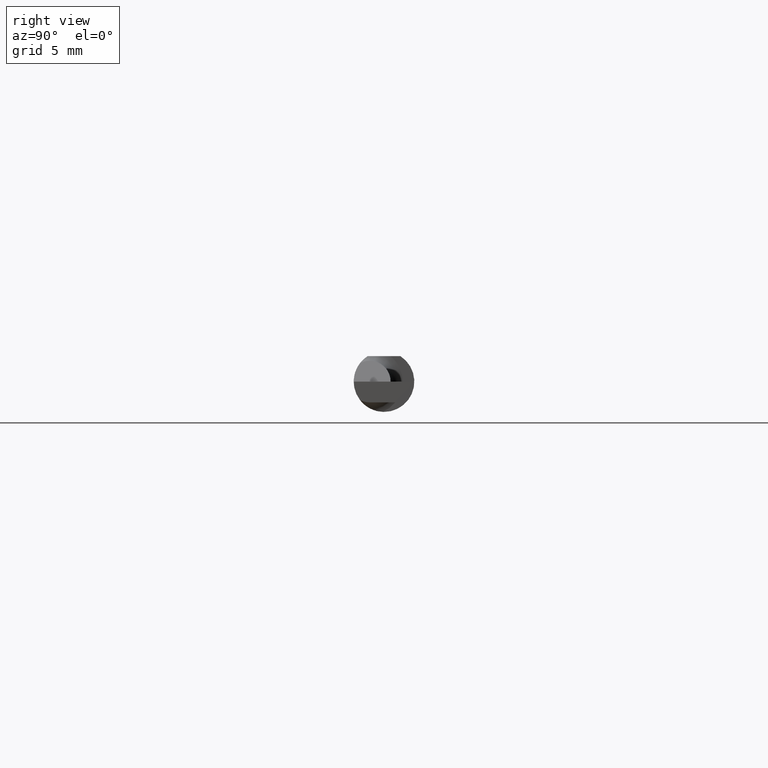
[diagram: clean part render]
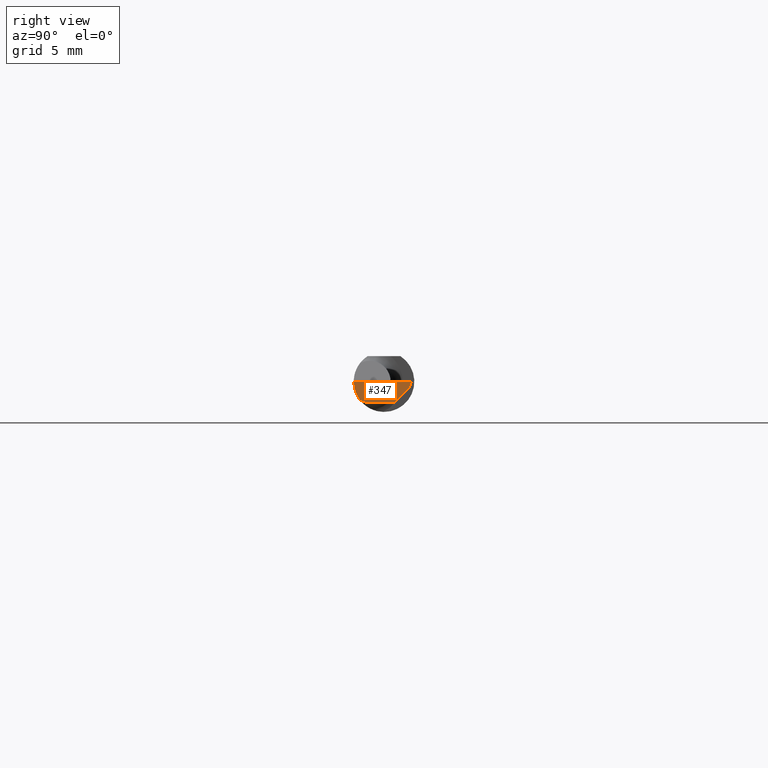
[diagram: same view with one face highlighted and labeled with its STEP entity id]
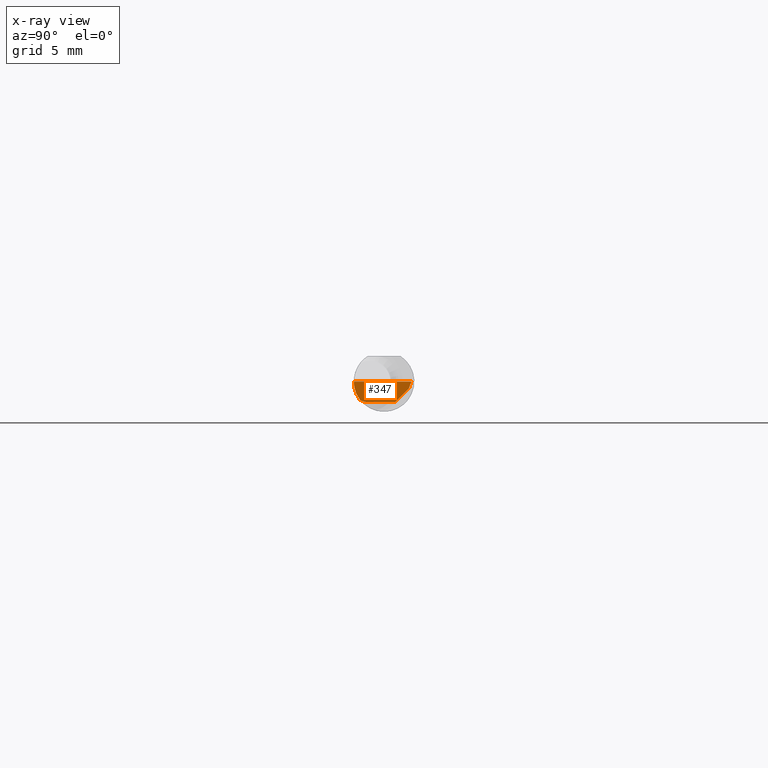
[diagram: x-ray of the same camera — body ghosted, the highlighted face saturated]
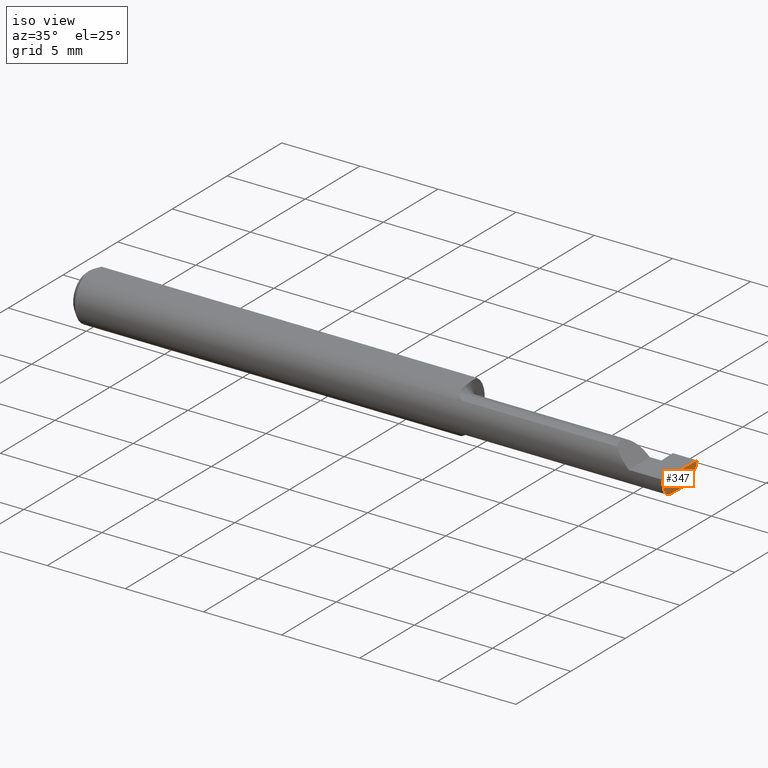
[diagram: same view with one face highlighted and labeled with its STEP entity id]
A machine part, right view. The second image highlights one B-rep face of the part: STEP entity #347.
The next image is the same camera in x-ray: the body ghosted, the highlighted face saturated — about 0% of this face is hidden behind the body in this view.
A second angle (iso view) of the same face is appended — the face is thin or edge-on in the first view.
In plain terms, the highlighted planar face has unit normal (-0.999, 0.0349, 0.0262).
Its self-contained STEP definition (entity closure, byte-faithful):
#33 = VERTEX_POINT ( 'NONE', #638 ) ;
#34 = CARTESIAN_POINT ( 'NONE',  ( 1.495429628496687924, -0.04338920303173532389, -0.04130098846439800991 ) ) ;
#39 = AXIS2_PLACEMENT_3D ( 'NONE', #670, #67, #634 ) ;
#40 = VERTEX_POINT ( 'NONE', #263 ) ;
#41 = CARTESIAN_POINT ( 'NONE',  ( 1.495298500941084185, -0.04961864406779661202, -0.03800315988011145063 ) ) ;
#49 = EDGE_CURVE ( 'NONE', #33, #185, #143, .T. ) ;
#67 = DIRECTION ( 'NONE',  ( -0.9990483607430195034, 0.03488753751661637786, 0.02617694830785934762 ) ) ;
#101 = ORIENTED_EDGE ( 'NONE', *, *, #290, .F. ) ;
#113 = CARTESIAN_POINT ( 'NONE',  ( 1.499269797026868467, 0.04837060006457220840, -0.01703381665570093823 ) ) ;
#119 = ORIENTED_EDGE ( 'NONE', *, *, #477, .T. ) ;
#125 = DIRECTION ( 'NONE',  ( -0.03489949670250192676, -0.9993908270190955401, 0.000000000000000000 ) ) ;
#143 =( BOUNDED_CURVE ( )  B_SPLINE_CURVE ( 3, ( #364, #708, #195, #154 ),
 .UNSPECIFIED., .F., .T. ) 
 B_SPLINE_CURVE_WITH_KNOTS ( ( 4, 4 ),
 ( 6.273290845822960371, 6.925979714601155912 ),
 .UNSPECIFIED. ) 
 CURVE ( )  GEOMETRIC_REPRESENTATION_ITEM ( )  RATIONAL_B_SPLINE_CURVE ( ( 1.000000000000000000, 0.9648137202604427642, 0.9648137202604427642, 1.000000000000000000 ) ) 
 REPRESENTATION_ITEM ( '' )  );
#149 = CARTESIAN_POINT ( 'NONE',  ( 1.494536378329570425, -0.06245432188394240552, -0.04998286624877784634 ) ) ;
#151 = CARTESIAN_POINT ( 'NONE',  ( 1.494541555929521870, -0.09980938693283122887, 6.684666059235883717E-19 ) ) ;
#154 = CARTESIAN_POINT ( 'NONE',  ( 1.495842932763845390, -0.06249997390100387601, -5.711719386471155157E-05 ) ) ;
#157 = CARTESIAN_POINT ( 'NONE',  ( 1.497682675024521792, 0.02240441672027304598, -0.04300000000000001044 ) ) ;
#170 = LINE ( 'NONE', #387, #379 ) ;
#173 = DIRECTION ( 'NONE',  ( -0.03654090288697374456, -0.3417917279781193529, -0.9390650547762576794 ) ) ;
#185 = VERTEX_POINT ( 'NONE', #565 ) ;
#187 = FACE_OUTER_BOUND ( 'NONE', #685, .T. ) ;
#191 = ORIENTED_EDGE ( 'NONE', *, *, #411, .F. ) ;
#195 = CARTESIAN_POINT ( 'NONE',  ( 1.495480616183712197, -0.06248732152722600436, -0.01390186301200442912 ) ) ;
#196 = EDGE_CURVE ( 'NONE', #413, #453, #170, .T. ) ;
#233 = CARTESIAN_POINT ( 'NONE',  ( 1.495870132852629597, -0.02950000000000001232, -0.04300000000000001044 ) ) ;
#258 = CARTESIAN_POINT ( 'NONE',  ( 1.495623993172869648, -0.03654851821258212063, -0.04300000000000001044 ) ) ;
#263 = CARTESIAN_POINT ( 'NONE',  ( 1.495844428430481710, -0.06249999999999996531, -4.014002452596986816E-18 ) ) ;
#290 = EDGE_CURVE ( 'NONE', #453, #632, #499, .T. ) ;
#321 = LINE ( 'NONE', #149, #530 ) ;
#336 = DIRECTION ( 'NONE',  ( -0.04317993108638109451, -0.7064472710512013087, -0.7064472710511987552 ) ) ;
#347 = ADVANCED_FACE ( 'NONE', ( #187 ), #461, .F. ) ;
#352 = VERTEX_POINT ( 'NONE', #233 ) ;
#364 = CARTESIAN_POINT ( 'NONE',  ( 1.495298500941084185, -0.04961864406779661202, -0.03800315988011145063 ) ) ;
#379 = VECTOR ( 'NONE', #173, 39.37007874015748854 ) ;
#384 = EDGE_CURVE ( 'NONE', #632, #352, #622, .T. ) ;
#387 = CARTESIAN_POINT ( 'NONE',  ( 1.499866476241620283, 0.05525106216603806186, -0.003431428497112987749 ) ) ;
#411 = EDGE_CURVE ( 'NONE', #40, #413, #533, .T. ) ;
#413 = VERTEX_POINT ( 'NONE', #422 ) ;
#422 = CARTESIAN_POINT ( 'NONE',  ( 1.499999999999999778, 0.05649999999999998079, -1.277885926723810555E-16 ) ) ;
#450 = ORIENTED_EDGE ( 'NONE', *, *, #196, .F. ) ;
#453 = VERTEX_POINT ( 'NONE', #646 ) ;
#459 = VECTOR ( 'NONE', #706, 39.37007874015748854 ) ;
#461 = PLANE ( 'NONE',  #39 ) ;
#477 = EDGE_CURVE ( 'NONE', #33, #352, #495, .T. ) ;
#485 = ORIENTED_EDGE ( 'NONE', *, *, #49, .F. ) ;
#489 = ORIENTED_EDGE ( 'NONE', *, *, #557, .F. ) ;
#495 =( BOUNDED_CURVE ( )  B_SPLINE_CURVE ( 3, ( #41, #34, #258, #702 ),
 .UNSPECIFIED., .F., .F. ) 
 B_SPLINE_CURVE_WITH_KNOTS ( ( 4, 4 ),
 ( 0.4402027036032312712, 0.9270880441442851394 ),
 .UNSPECIFIED. ) 
 CURVE ( )  GEOMETRIC_REPRESENTATION_ITEM ( )  RATIONAL_B_SPLINE_CURVE ( ( 1.000000000000000000, 0.9803425923803469333, 0.9803425923803469333, 1.000000000000000000 ) ) 
 REPRESENTATION_ITEM ( '' )  );
#499 = LINE ( 'NONE', #113, #639 ) ;
#530 = VECTOR ( 'NONE', #594, 39.37007874015748854 ) ;
#533 = LINE ( 'NONE', #151, #459 ) ;
#549 = VECTOR ( 'NONE', #125, 39.37007874015748854 ) ;
#557 = EDGE_CURVE ( 'NONE', #185, #40, #321, .T. ) ;
#565 = CARTESIAN_POINT ( 'NONE',  ( 1.495842932763845390, -0.06249997390100387601, -5.711719386471155157E-05 ) ) ;
#594 = DIRECTION ( 'NONE',  ( 0.02616100201822768243, -0.0009135623211514308940, 0.9996573249755575929 ) ) ;
#622 = LINE ( 'NONE', #631, #549 ) ;
#631 = CARTESIAN_POINT ( 'NONE',  ( 1.498486040240527339, 0.04540978652448672548, -0.04300000000000001044 ) ) ;
#632 = VERTEX_POINT ( 'NONE', #157 ) ;
#634 = DIRECTION ( 'NONE',  ( -0.03489949670250192676, -0.9993908270190955401, 0.000000000000000000 ) ) ;
#638 = CARTESIAN_POINT ( 'NONE',  ( 1.495298500941084185, -0.04961864406779661202, -0.03800315988011145063 ) ) ;
#639 = VECTOR ( 'NONE', #336, 39.37007874015748143 ) ;
#646 = CARTESIAN_POINT ( 'NONE',  ( 1.499455231948185308, 0.05140441672027315501, -0.01400000000000000203 ) ) ;
#670 = CARTESIAN_POINT ( 'NONE',  ( 1.498691949899088494, 0.05654567811605757527, -0.04998286624877786716 ) ) ;
#681 = ORIENTED_EDGE ( 'NONE', *, *, #384, .F. ) ;
#685 = EDGE_LOOP ( 'NONE', ( #119, #681, #101, #450, #191, #489, #485 ) ) ;
#702 = CARTESIAN_POINT ( 'NONE',  ( 1.495870132852629597, -0.02950000000000001232, -0.04300000000000001044 ) ) ;
#706 = DIRECTION ( 'NONE',  ( 0.03489949670250192676, 0.9993908270190955401, -4.271027038988480103E-18 ) ) ;
#708 = CARTESIAN_POINT ( 'NONE',  ( 1.495292520522919943, -0.05803695300436750165, -0.02701183505096050458 ) ) ;